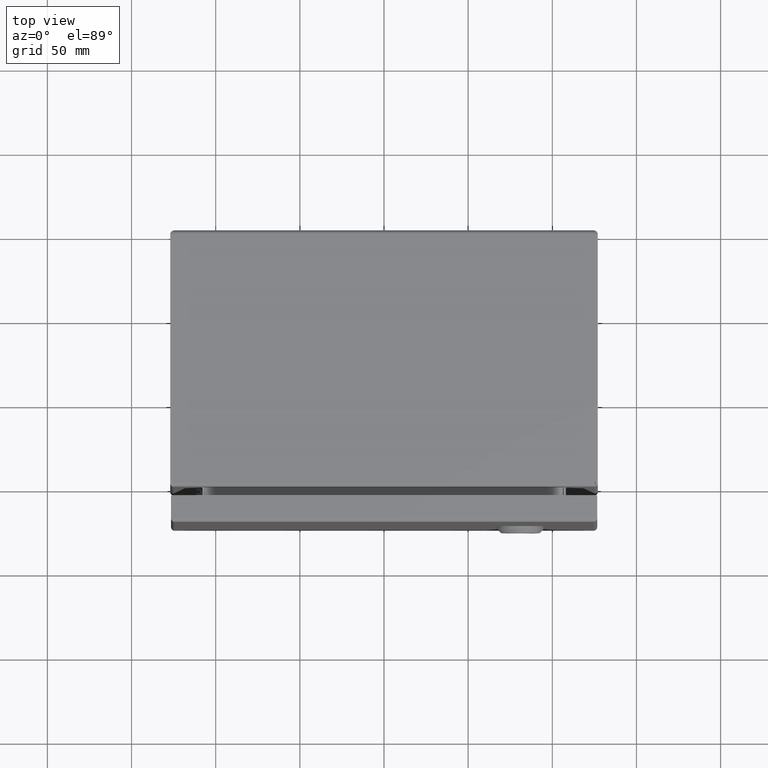
[diagram: clean part render]
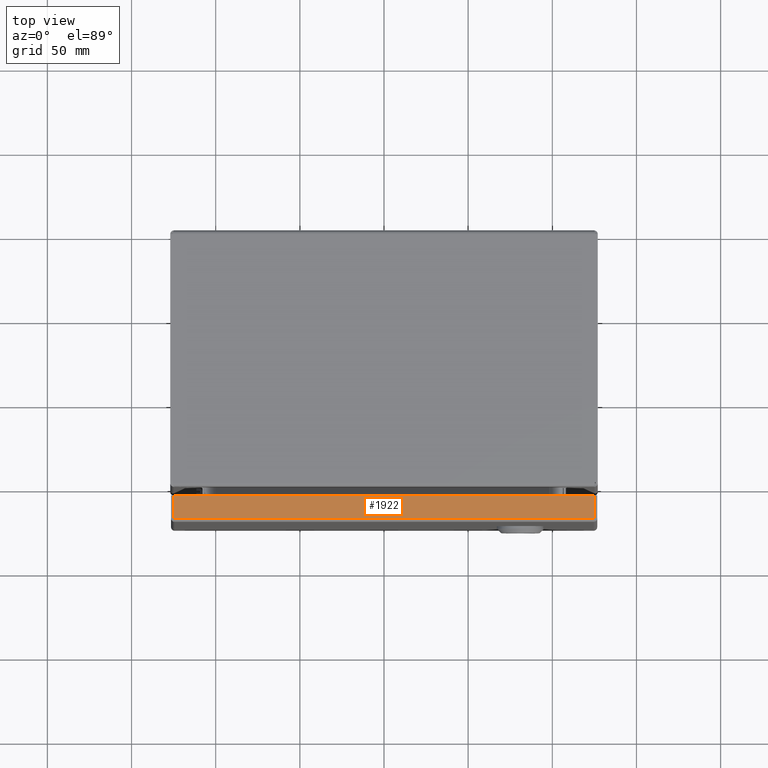
[diagram: same view with one face highlighted and labeled with its STEP entity id]
A machine part, top view. The second image highlights one B-rep face of the part: STEP entity #1922.
In plain terms, the highlighted planar face has unit normal (0, -0, -1).
Its self-contained STEP definition (entity closure, byte-faithful):
#1364 = CARTESIAN_POINT ( 'NONE',  ( 4.929921259842513948, -6.775000000000001243, 5.983999999999997321 ) ) ;
#1470 = ORIENTED_EDGE ( 'NONE', *, *, #18547, .T. ) ;
#1922 = ADVANCED_FACE ( 'NONE', ( #6441 ), #28292, .F. ) ;
#3921 = LINE ( 'NONE', #6087, #24883 ) ;
#4126 = DIRECTION ( 'NONE',  ( 0.0000000000000000000, -6.123031769111889989E-17, -1.000000000000000000 ) ) ;
#4158 = VERTEX_POINT ( 'NONE', #15559 ) ;
#5831 = EDGE_LOOP ( 'NONE', ( #1470, #16433, #22030, #6458 ) ) ;
#6087 = CARTESIAN_POINT ( 'NONE',  ( 4.900999999999995360, -6.196999999999999176, 5.983999999999997321 ) ) ;
#6231 = DIRECTION ( 'NONE',  ( -1.000000000000000000, -0.0000000000000000000, -0.0000000000000000000 ) ) ;
#6397 = EDGE_CURVE ( 'NONE', #14912, #11756, #8152, .T. ) ;
#6441 = FACE_OUTER_BOUND ( 'NONE', #5831, .T. ) ;
#6458 = ORIENTED_EDGE ( 'NONE', *, *, #6397, .F. ) ;
#7291 = AXIS2_PLACEMENT_3D ( 'NONE', #21593, #4126, #10383 ) ;
#8020 = DIRECTION ( 'NONE',  ( -1.000000000000000000, -3.749399456654639914E-33, -6.123233995736769734E-17 ) ) ;
#8152 = LINE ( 'NONE', #14509, #25411 ) ;
#9474 = DIRECTION ( 'NONE',  ( -2.835828367125530165E-15, -1.000000000000000000, -0.0000000000000000000 ) ) ;
#10383 = DIRECTION ( 'NONE',  ( 0.0000000000000000000, 1.000000000000000000, -6.123031769111889989E-17 ) ) ;
#11756 = VERTEX_POINT ( 'NONE', #22510 ) ;
#14509 = CARTESIAN_POINT ( 'NONE',  ( -4.896000000000005237, -6.735999999999985555, 5.983999999999997321 ) ) ;
#14894 = CARTESIAN_POINT ( 'NONE',  ( 4.929921259842513948, -6.735999999999992660, 5.983999999999998209 ) ) ;
#14898 = EDGE_CURVE ( 'NONE', #19432, #4158, #3921, .T. ) ;
#14912 = VERTEX_POINT ( 'NONE', #14894 ) ;
#15559 = CARTESIAN_POINT ( 'NONE',  ( -4.924921259842524712, -6.196999999999999176, 5.983999999999997321 ) ) ;
#15679 = EDGE_CURVE ( 'NONE', #4158, #11756, #16363, .T. ) ;
#15961 = CARTESIAN_POINT ( 'NONE',  ( 4.929921259842513948, -6.196999999999999176, 5.983999999999997321 ) ) ;
#16202 = DIRECTION ( 'NONE',  ( -9.452761223751749467E-16, 1.000000000000000000, -0.0000000000000000000 ) ) ;
#16363 = LINE ( 'NONE', #25153, #28248 ) ;
#16433 = ORIENTED_EDGE ( 'NONE', *, *, #14898, .T. ) ;
#18204 = VECTOR ( 'NONE', #16202, 39.37007874015748143 ) ;
#18547 = EDGE_CURVE ( 'NONE', #14912, #19432, #25586, .T. ) ;
#19432 = VERTEX_POINT ( 'NONE', #15961 ) ;
#21593 = CARTESIAN_POINT ( 'NONE',  ( 4.900999999999995360, -6.775000000000001243, 5.983999999999997321 ) ) ;
#22030 = ORIENTED_EDGE ( 'NONE', *, *, #15679, .T. ) ;
#22510 = CARTESIAN_POINT ( 'NONE',  ( -4.924921259842525600, -6.735999999999992660, 5.983999999999997321 ) ) ;
#24883 = VECTOR ( 'NONE', #6231, 39.37007874015748143 ) ;
#25153 = CARTESIAN_POINT ( 'NONE',  ( -4.924921259842525600, -6.775000000000001243, 5.983999999999997321 ) ) ;
#25411 = VECTOR ( 'NONE', #8020, 39.37007874015748143 ) ;
#25586 = LINE ( 'NONE', #1364, #18204 ) ;
#28248 = VECTOR ( 'NONE', #9474, 39.37007874015748143 ) ;
#28292 = PLANE ( 'NONE',  #7291 ) ;